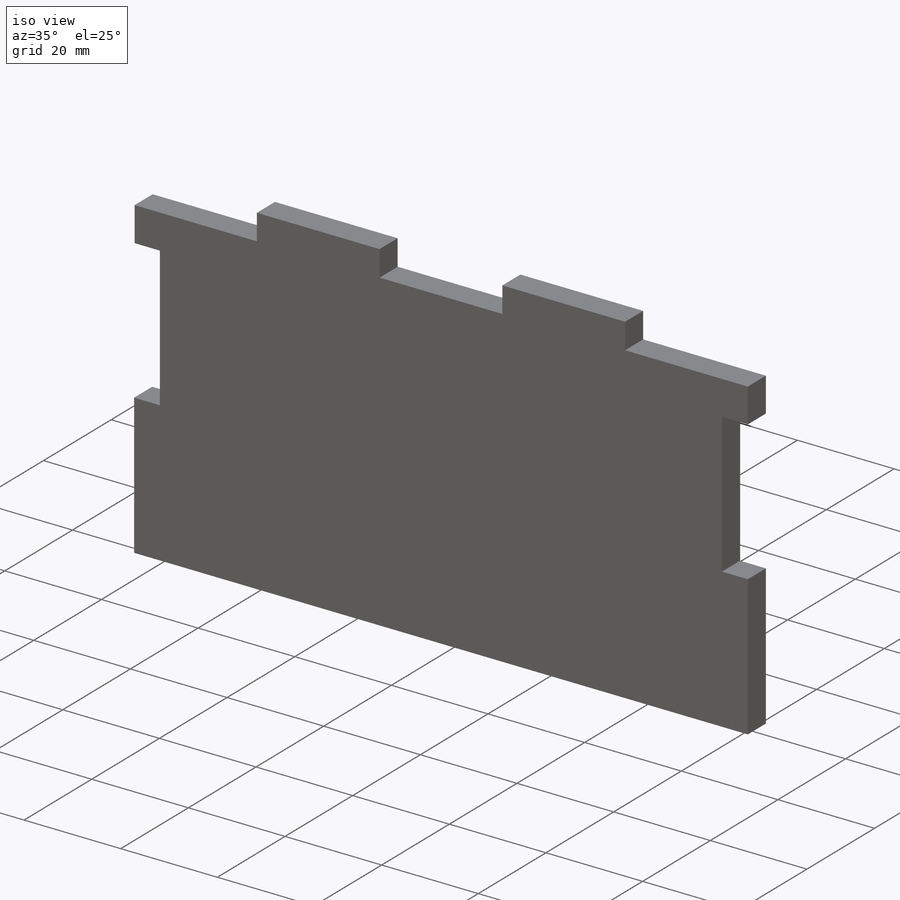
[diagram: iso view]
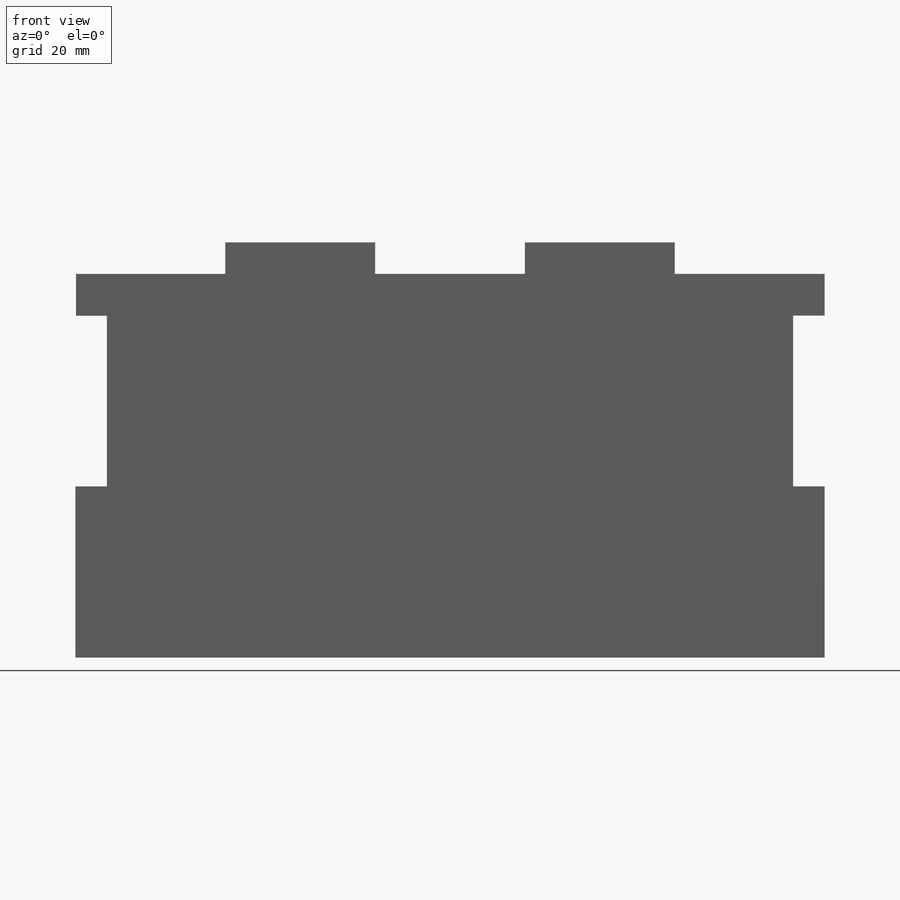
[diagram: front view]
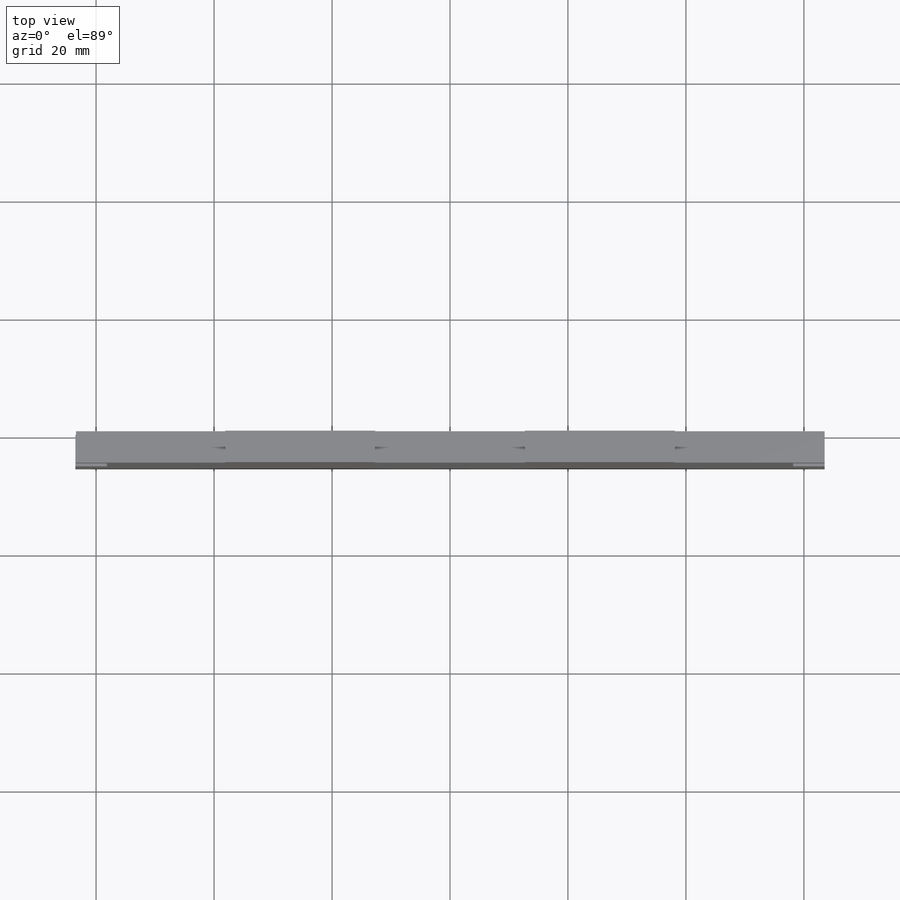
[diagram: top view]
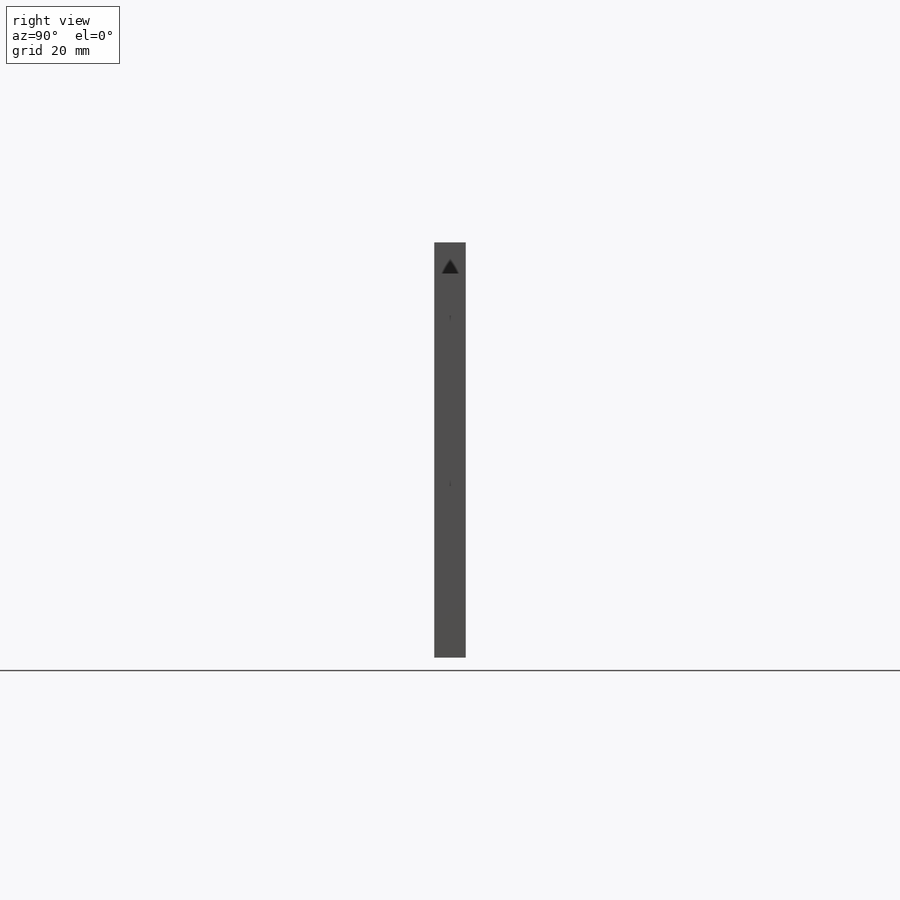
[diagram: right view]
SOLIDWORKS PART (.sldprt)
format: sldprt  version: not decoded by parser v0  size: 296,448 bytes
history: native  units: mm
features: sketch x6, extrude x5, cut_extrude x3, material x1 (+11 scaffold rows collapsed)
feature tree (26):
  scaffold x11  (default folders/planes/origin — collapsed)
  material  "Material <not specified>"
  sketch  "Sketch2"  dims[D1=127.0mm D2=152.4mm]
  extrude  "Boss-Extrude2"  Depth=6.35mm
  sketch  "Sketch3"  dims[D1=87.122mm]
  cut_extrude  "Cut-Extrude1"  [1 undecoded]
  extrude  "boxSide<1>@MinSpecRobot1"  [1 undecoded]
  sketch  "Sketch4"
  cut_extrude  "Cut-Extrude2"  [1 undecoded]
  sketch  "Sketch5"  dims[D1=12.446mm]
  extrude  "Boss-Extrude3"  [1 undecoded]
  extrude  "boxTop<1>@MinSpecRobot1"  [1 undecoded]
  sketch  "Sketch6"  dims[D1=28.956mm D2=5.334mm]
  extrude  "Boss-Extrude4"  [1 undecoded]
  sketch  "Sketch7"
  cut_extrude  "Cut-Extrude3"  [1 undecoded]
decode coverage: 5 of 14 modeling features carry decoded parameters
note: 7 parameter values undecoded
summary: no parameter record found for 7 features
note: suppression state not decoded; provenance and decode notes live in map.json
